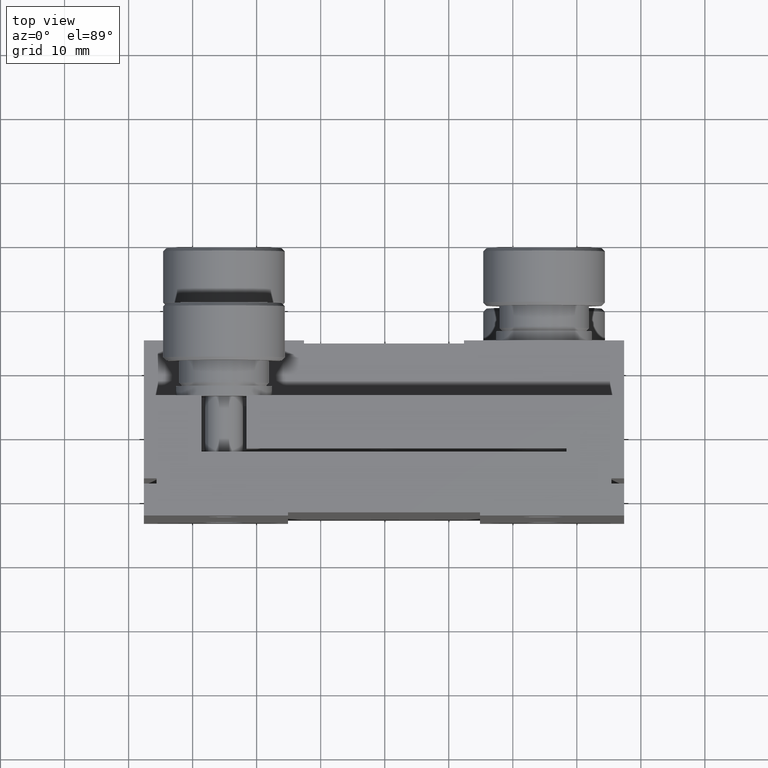
[diagram: clean part render]
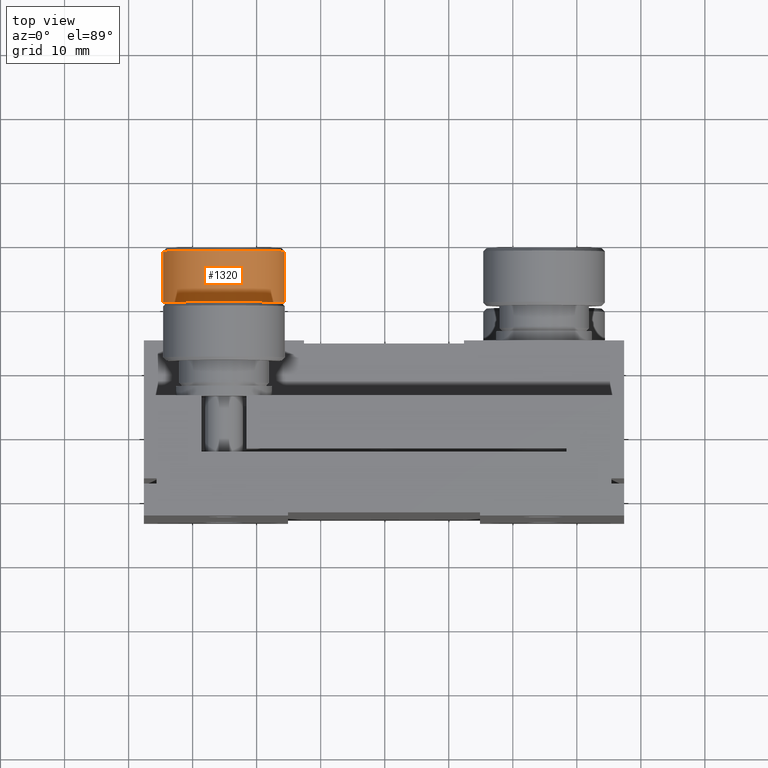
[diagram: same view with one face highlighted and labeled with its STEP entity id]
A machine part, top view. The second image highlights one B-rep face of the part: STEP entity #1320.
In plain terms, the highlighted cylindrical surface (partial cylindrical patch) has radius 9.5 mm, axis along (-0, 1, -0).
Its self-contained STEP definition (entity closure, byte-faithful):
#40 = CARTESIAN_POINT ( 'NONE',  ( -25.11353315168029000, 16.22107175295186800, 6.524501194787215800E-015 ) ) ;
#104 = AXIS2_PLACEMENT_3D ( 'NONE', #1357, #5539, #2977 ) ;
#119 = VERTEX_POINT ( 'NONE', #244 ) ;
#244 = CARTESIAN_POINT ( 'NONE',  ( -34.61353315168040700, 20.72107175295188600, 5.119966596414945200E-015 ) ) ;
#290 = CARTESIAN_POINT ( 'NONE',  ( -15.61353315168021500, 16.22107175295186800, 5.469789321393317900E-015 ) ) ;
#291 = FACE_OUTER_BOUND ( 'NONE', #4090, .T. ) ;
#536 = ORIENTED_EDGE ( 'NONE', *, *, #1989, .T. ) ;
#727 = EDGE_CURVE ( 'NONE', #119, #5432, #5744, .T. ) ;
#1061 = ORIENTED_EDGE ( 'NONE', *, *, #1976, .T. ) ;
#1086 = AXIS2_PLACEMENT_3D ( 'NONE', #5457, #3460, #6010 ) ;
#1088 = VECTOR ( 'NONE', #1271, 1000.000000000000000 ) ;
#1090 = ORIENTED_EDGE ( 'NONE', *, *, #727, .T. ) ;
#1271 = DIRECTION ( 'NONE',  ( -1.484610486484067300E-016, 1.000000000000000000, -2.879626694613709100E-016 ) ) ;
#1320 = ADVANCED_FACE ( 'NONE', ( #291 ), #5733, .T. ) ;
#1357 = CARTESIAN_POINT ( 'NONE',  ( -25.11353315168033300, 20.72107175295188600, 5.228669182211041400E-015 ) ) ;
#1623 = DIRECTION ( 'NONE',  ( 1.000000000000000000, 0.0000000000000000000, -1.110223024625147200E-016 ) ) ;
#1959 = ORIENTED_EDGE ( 'NONE', *, *, #5130, .F. ) ;
#1976 = EDGE_CURVE ( 'NONE', #5432, #5164, #2490, .T. ) ;
#1978 = CARTESIAN_POINT ( 'NONE',  ( -34.61353315168036500, 16.22107175295186800, 6.415798608991119600E-015 ) ) ;
#1989 = EDGE_CURVE ( 'NONE', #5164, #2412, #2486, .T. ) ;
#2020 = DIRECTION ( 'NONE',  ( -1.484610486484067300E-016, 1.000000000000000000, -2.879626694613709100E-016 ) ) ;
#2412 = VERTEX_POINT ( 'NONE', #6508 ) ;
#2486 = CIRCLE ( 'NONE', #1086, 9.500000000000074600 ) ;
#2490 = LINE ( 'NONE', #290, #1088 ) ;
#2493 = CARTESIAN_POINT ( 'NONE',  ( -15.61353315168025800, 28.72107175295188200, 1.870255953126169500E-015 ) ) ;
#2938 = LINE ( 'NONE', #1978, #3961 ) ;
#2977 = DIRECTION ( 'NONE',  ( -1.000000000000000000, 0.0000000000000000000, 1.110223024625147200E-016 ) ) ;
#3175 = CARTESIAN_POINT ( 'NONE',  ( -15.61353315168025600, 20.72107175295188600, 4.173957308817142700E-015 ) ) ;
#3460 = DIRECTION ( 'NONE',  ( 1.484610486484067300E-016, -1.000000000000000000, 2.879626694613709100E-016 ) ) ;
#3961 = VECTOR ( 'NONE', #2020, 1000.000000000000000 ) ;
#4090 = EDGE_LOOP ( 'NONE', ( #1959, #1090, #1061, #536 ) ) ;
#4131 = AXIS2_PLACEMENT_3D ( 'NONE', #40, #4663, #1623 ) ;
#4663 = DIRECTION ( 'NONE',  ( -1.484610486484067300E-016, 1.000000000000000000, -2.879626694613709100E-016 ) ) ;
#5130 = EDGE_CURVE ( 'NONE', #119, #2412, #2938, .T. ) ;
#5164 = VERTEX_POINT ( 'NONE', #2493 ) ;
#5432 = VERTEX_POINT ( 'NONE', #3175 ) ;
#5457 = CARTESIAN_POINT ( 'NONE',  ( -25.11353315168033300, 28.72107175295188200, 2.924967826520067400E-015 ) ) ;
#5539 = DIRECTION ( 'NONE',  ( -1.484610486484067300E-016, 1.000000000000000000, -2.879626694613709100E-016 ) ) ;
#5733 = CYLINDRICAL_SURFACE ( 'NONE', #4131, 9.500000000000074600 ) ;
#5744 = CIRCLE ( 'NONE', #104, 9.500000000000074600 ) ;
#6010 = DIRECTION ( 'NONE',  ( 1.000000000000000000, 0.0000000000000000000, -1.110223024625146800E-016 ) ) ;
#6508 = CARTESIAN_POINT ( 'NONE',  ( -34.61353315168032900, 28.72107175295188200, 3.968115918569459300E-015 ) ) ;